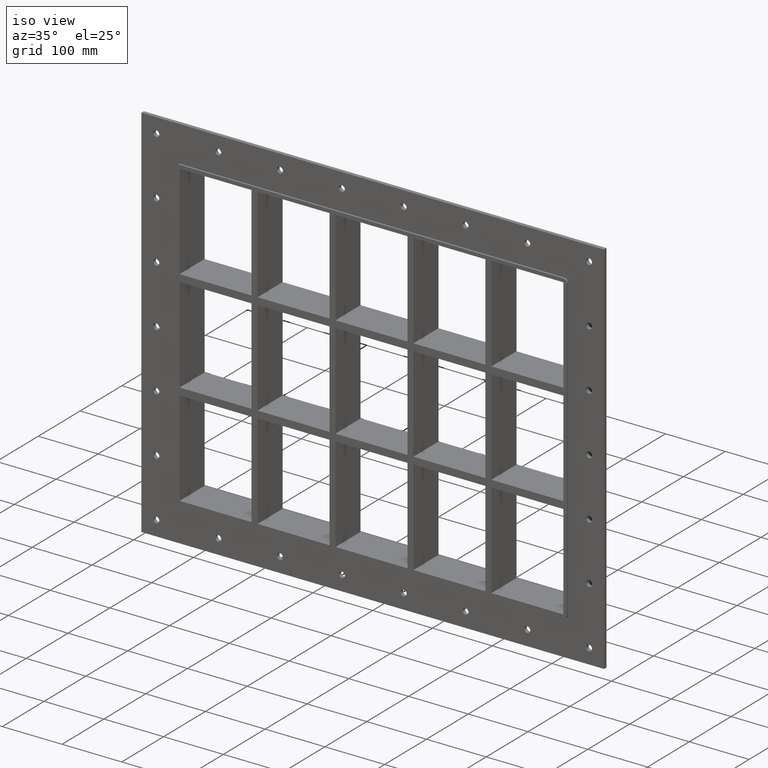
[diagram: clean part render]
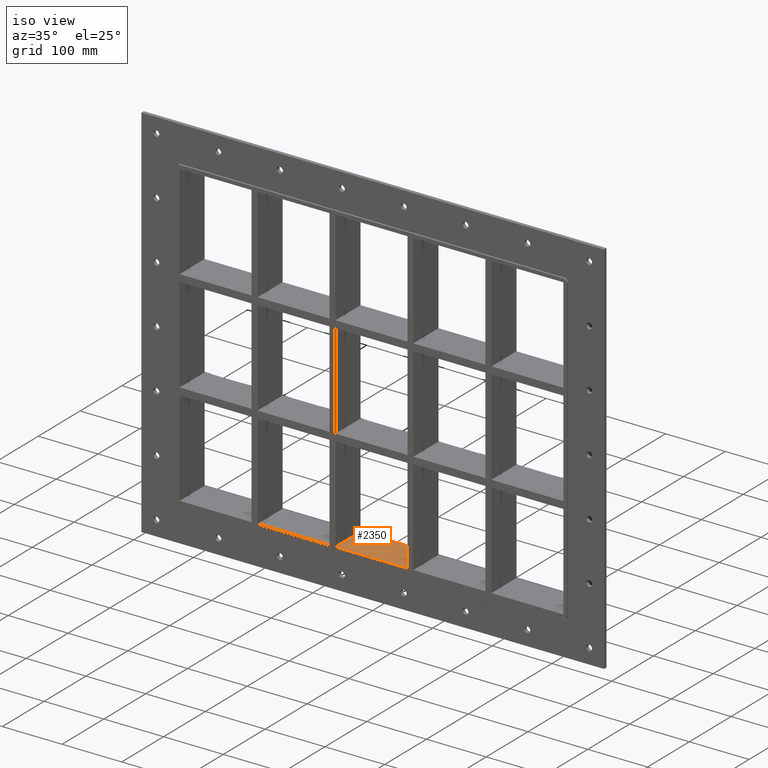
[diagram: same view with one face highlighted and labeled with its STEP entity id]
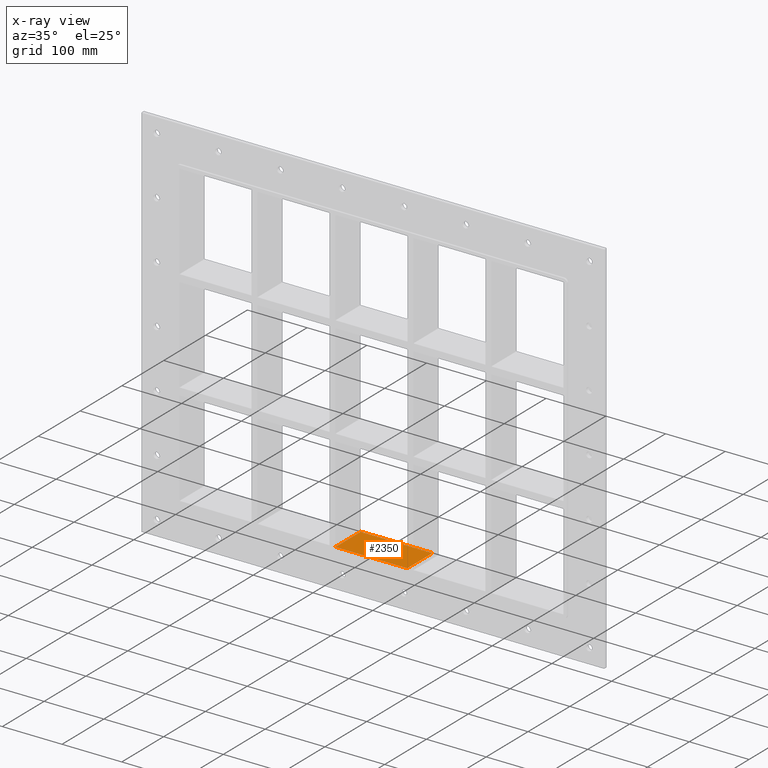
[diagram: x-ray of the same camera — body ghosted, the highlighted face saturated]
A machine part, iso view. The second image highlights one B-rep face of the part: STEP entity #2350.
The next image is the same camera in x-ray: the body ghosted, the highlighted face saturated — about 0% of this face is hidden behind the body in this view.
In plain terms, the highlighted planar face has unit normal (0, 0, -1).
Its self-contained STEP definition (entity closure, byte-faithful):
#1866=CARTESIAN_POINT('',(60.249999999998707,57.0,-251.25000000000006));
#1867=VERTEX_POINT('',#1866);
#1884=CARTESIAN_POINT('',(-60.250000000007269,57.0,-251.24999999998431));
#1885=VERTEX_POINT('',#1884);
#1892=CARTESIAN_POINT('',(-60.250000000007276,57.0,-251.25000000000006));
#1893=DIRECTION('',(1.0,0.0,0.0));
#1894=VECTOR('',#1893,120.50000000000597);
#1895=LINE('',#1892,#1894);
#1896=EDGE_CURVE('',#1885,#1867,#1895,.T.);
#2128=CARTESIAN_POINT('',(60.249999999998707,-3.0,-251.25000000000006));
#2129=VERTEX_POINT('',#2128);
#2130=CARTESIAN_POINT('',(60.249999999998707,-3.0,-251.25000000000006));
#2131=DIRECTION('',(0.0,1.0,0.0));
#2132=VECTOR('',#2131,60.000000000000007);
#2133=LINE('',#2130,#2132);
#2134=EDGE_CURVE('',#2129,#1867,#2133,.T.);
#2292=CARTESIAN_POINT('',(-60.250000000007269,-3.0,-251.24999999998434));
#2293=VERTEX_POINT('',#2292);
#2300=CARTESIAN_POINT('',(-60.25000000000729,57.000000000000007,-251.25000000000006));
#2301=DIRECTION('',(0.0,-1.0,0.0));
#2302=VECTOR('',#2301,60.000000000000007);
#2303=LINE('',#2300,#2302);
#2304=EDGE_CURVE('',#1885,#2293,#2303,.T.);
#2334=CARTESIAN_POINT('',(321.25000000000011,0.0,-251.25000000000006));
#2335=DIRECTION('',(0.0,0.0,-1.0));
#2336=DIRECTION('',(-1.0,0.0,0.0));
#2337=AXIS2_PLACEMENT_3D('',#2334,#2335,#2336);
#2338=PLANE('',#2337);
#2339=ORIENTED_EDGE('',*,*,#2134,.T.);
#2340=ORIENTED_EDGE('',*,*,#1896,.F.);
#2341=ORIENTED_EDGE('',*,*,#2304,.T.);
#2342=CARTESIAN_POINT('',(60.249999999998693,-3.0,-251.25000000000006));
#2343=DIRECTION('',(-1.0,0.0,0.0));
#2344=VECTOR('',#2343,120.50000000000597);
#2345=LINE('',#2342,#2344);
#2346=EDGE_CURVE('',#2129,#2293,#2345,.T.);
#2347=ORIENTED_EDGE('',*,*,#2346,.F.);
#2348=EDGE_LOOP('',(#2339,#2340,#2341,#2347));
#2349=FACE_OUTER_BOUND('',#2348,.T.);
#2350=ADVANCED_FACE('',(#2349),#2338,.F.);